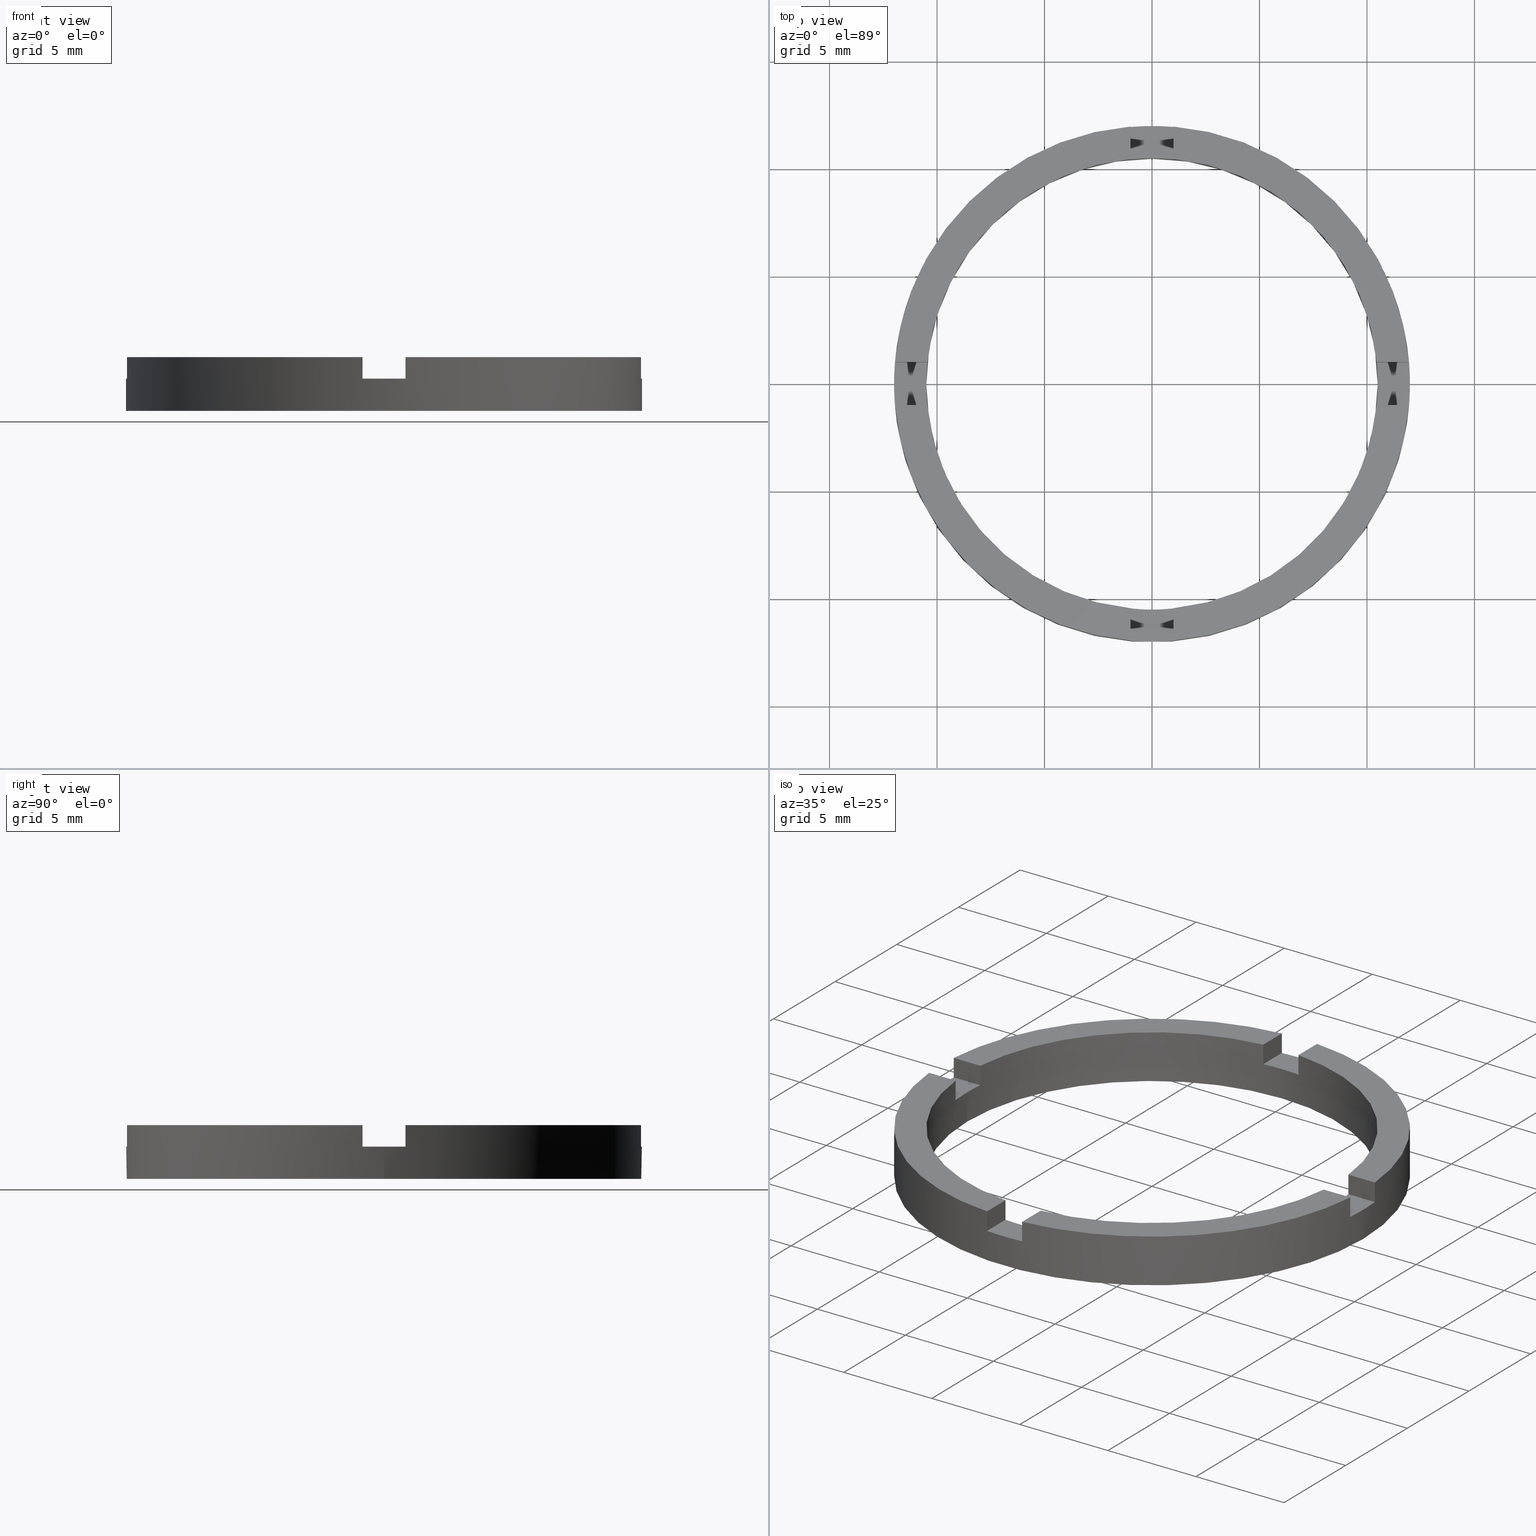
[diagram: canonical four-view strip — front | top / right | iso, engineering-drawing reading convention]
A machine part, canonical four-view strip (front | top / right | iso — engineering-drawing reading convention). The complete STEP part file that produces these views, byte-faithful:
ISO-10303-21;
HEADER;
FILE_DESCRIPTION (( 'STEP AP203' ),
    '1' );
FILE_NAME ('514054.step',
    '2024-12-26T02:33:09',
    ( 'MSI' ),
    ( '' ),
    'SwSTEP 2.0',
    'SolidWorks 2020',
    '' );
FILE_SCHEMA (( 'CONFIG_CONTROL_DESIGN' ));
ENDSEC;

DATA;
#1 = DIRECTION ( 'NONE',  ( 0.000000000000000000, -0.000000000000000000, 1.000000000000000000 ) ) ;
#2 = EDGE_LOOP ( 'NONE', ( #645, #752 ) ) ;
#3 = PLANE ( 'NONE',  #321 ) ;
#4 = EDGE_LOOP ( 'NONE', ( #707, #517, #603, #670, #394, #700, #346, #362, #524, #426, #630, #94 ) ) ;
#5 = VERTEX_POINT ( 'NONE', #34 ) ;
#6 = CARTESIAN_POINT ( 'NONE',  ( 0.000000000000000000, 0.000000000000000000, 2.500000000000000000 ) ) ;
#7 = VERTEX_POINT ( 'NONE', #329 ) ;
#8 = EDGE_LOOP ( 'NONE', ( #273, #177, #510, #445 ) ) ;
#9 = CARTESIAN_POINT ( 'NONE',  ( 0.000000000000000000, 0.000000000000000000, 1.500000000000000000 ) ) ;
#10 = VERTEX_POINT ( 'NONE', #75 ) ;
#11 = ORIENTED_EDGE ( 'NONE', *, *, #65, .F. ) ;
#12 = ORIENTED_EDGE ( 'NONE', *, *, #336, .F. ) ;
#13 = APPROVAL ( #293, 'δָ��' ) ;
#14 = AXIS2_PLACEMENT_3D ( 'NONE', #145, #228, #484 ) ;
#15 = CIRCLE ( 'NONE', #560, 12.00000000000000178 ) ;
#16 = CC_DESIGN_SECURITY_CLASSIFICATION ( #244, ( #204 ) ) ;
#17 = CIRCLE ( 'NONE', #315, 10.49999999999999822 ) ;
#18 = CYLINDRICAL_SURFACE ( 'NONE', #749, 12.00000000000000178 ) ;
#19 = ADVANCED_FACE ( 'NONE', ( #447 ), #761, .F. ) ;
#20 = VECTOR ( 'NONE', #90, 1000.000000000000000 ) ;
#21 = DIRECTION ( 'NONE',  ( 1.000000000000000000, 0.000000000000000000, 0.000000000000000000 ) ) ;
#22 = DIRECTION ( 'NONE',  ( -1.000000000000000000, 0.000000000000000000, 0.000000000000000000 ) ) ;
#23 = APPROVAL_PERSON_ORGANIZATION ( #291, #306, #236 ) ;
#24 = ADVANCED_FACE ( 'NONE', ( #681 ), #506, .T. ) ;
#25 = DIRECTION ( 'NONE',  ( 0.000000000000000000, 0.000000000000000000, 1.000000000000000000 ) ) ;
#26 = AXIS2_PLACEMENT_3D ( 'NONE', #754, #759, #381 ) ;
#27 = DIRECTION ( 'NONE',  ( 0.000000000000000000, 0.000000000000000000, 1.000000000000000000 ) ) ;
#28 = EDGE_CURVE ( 'NONE', #535, #104, #402, .T. ) ;
#29 = CARTESIAN_POINT ( 'NONE',  ( 0.9999999999999754641, 11.95826074310140363, 2.500000000000000000 ) ) ;
#30 = EDGE_CURVE ( 'NONE', #216, #609, #451, .T. ) ;
#31 = FACE_OUTER_BOUND ( 'NONE', #100, .T. ) ;
#32 = DIRECTION ( 'NONE',  ( -1.000000000000000000, 0.000000000000000000, 0.000000000000000000 ) ) ;
#33 = PLANE ( 'NONE',  #579 ) ;
#34 = CARTESIAN_POINT ( 'NONE',  ( 11.95826074310138765, -1.000000000000159872, 2.500000000000000000 ) ) ;
#35 = VECTOR ( 'NONE', #581, 1000.000000000000000 ) ;
#36 = PLANE ( 'NONE',  #704 ) ;
#37 = LINE ( 'NONE', #222, #566 ) ;
#38 = CARTESIAN_POINT ( 'NONE',  ( -11.95826074310140186, 0.9999999999999779066, 2.500000000000000000 ) ) ;
#39 = CARTESIAN_POINT ( 'NONE',  ( 0.000000000000000000, 0.000000000000000000, 0.000000000000000000 ) ) ;
#40 = FACE_OUTER_BOUND ( 'NONE', #226, .T. ) ;
#41 = CC_DESIGN_PERSON_AND_ORGANIZATION_ASSIGNMENT ( #400, #575, ( #168 ) ) ;
#42 = AXIS2_PLACEMENT_3D ( 'NONE', #331, #478, #403 ) ;
#43 = DIRECTION ( 'NONE',  ( 1.301042606982605567E-16, -1.000000000000000000, 0.000000000000000000 ) ) ;
#44 = DIRECTION ( 'NONE',  ( 0.000000000000000000, 0.000000000000000000, 1.000000000000000000 ) ) ;
#45 = DIRECTION ( 'NONE',  ( 1.000000000000000000, 0.000000000000000000, 0.000000000000000000 ) ) ;
#46 = ADVANCED_FACE ( 'NONE', ( #696 ), #262, .T. ) ;
#47 = CARTESIAN_POINT ( 'NONE',  ( 1.999999999999998224, 0.9999999999998397948, 1.500000000000000000 ) ) ;
#48 = DIRECTION ( 'NONE',  ( -0.000000000000000000, -0.000000000000000000, -1.000000000000000000 ) ) ;
#49 = EDGE_CURVE ( 'NONE', #216, #81, #663, .T. ) ;
#50 = CARTESIAN_POINT ( 'NONE',  ( 0.000000000000000000, 0.000000000000000000, 1.500000000000000000 ) ) ;
#51 = AXIS2_PLACEMENT_3D ( 'NONE', #587, #545, #296 ) ;
#52 = DIRECTION ( 'NONE',  ( 1.000000000000000000, 0.000000000000000000, 0.000000000000000000 ) ) ;
#53 = DIRECTION ( 'NONE',  ( 0.000000000000000000, 0.000000000000000000, 1.000000000000000000 ) ) ;
#54 = EDGE_CURVE ( 'NONE', #479, #175, #136, .T. ) ;
#55 = DIRECTION ( 'NONE',  ( 0.000000000000000000, 0.000000000000000000, 1.000000000000000000 ) ) ;
#56 = UNCERTAINTY_MEASURE_WITH_UNIT (LENGTH_MEASURE( 1.000000000000000082E-05 ), #758, 'distance_accuracy_value', 'NONE');
#57 = MANIFOLD_SOLID_BREP ( '�г�-����1', #606 ) ;
#58 = CARTESIAN_POINT ( 'NONE',  ( 0.9999999999999754641, 2.000000000000001776, 1.500000000000000000 ) ) ;
#59 = DESIGN_CONTEXT ( 'detailed design', #229, 'design' ) ;
#60 = AXIS2_PLACEMENT_3D ( 'NONE', #83, #577, #270 ) ;
#61 = CARTESIAN_POINT ( 'NONE',  ( -1.000000000000024425, 10.45227248018343325, 1.500000000000000000 ) ) ;
#62 = ADVANCED_FACE ( 'NONE', ( #665 ), #154, .F. ) ;
#63 = CARTESIAN_POINT ( 'NONE',  ( 0.000000000000000000, 0.000000000000000000, 2.500000000000000000 ) ) ;
#64 = PLANE ( 'NONE',  #256 ) ;
#65 = EDGE_CURVE ( 'NONE', #454, #375, #180, .T. ) ;
#66 = DIRECTION ( 'NONE',  ( -0.000000000000000000, -0.000000000000000000, -1.000000000000000000 ) ) ;
#67 = APPROVAL ( #631, 'δָ��' ) ;
#68 = CARTESIAN_POINT ( 'NONE',  ( 0.000000000000000000, 0.000000000000000000, 0.000000000000000000 ) ) ;
#69 = PERSON_AND_ORGANIZATION_ROLE ( 'design_supplier' ) ;
#70 = DIRECTION ( 'NONE',  ( -0.000000000000000000, -0.000000000000000000, -1.000000000000000000 ) ) ;
#71 = DIRECTION ( 'NONE',  ( -1.000000000000000000, -1.734723475976807341E-16, 0.000000000000000000 ) ) ;
#72 = VERTEX_POINT ( 'NONE', #462 ) ;
#73 = AXIS2_PLACEMENT_3D ( 'NONE', #68, #649, #732 ) ;
#74 = AXIS2_PLACEMENT_3D ( 'NONE', #495, #1, #499 ) ;
#75 = CARTESIAN_POINT ( 'NONE',  ( 0.9999999999998361311, -10.45227248018345101, 1.500000000000000000 ) ) ;
#76 = ORIENTED_EDGE ( 'NONE', *, *, #319, .T. ) ;
#77 = APPLICATION_CONTEXT ( 'configuration controlled 3d designs of mechanical parts and assemblies' ) ;
#78 = EDGE_LOOP ( 'NONE', ( #88, #522, #616, #632, #102, #363, #712, #457, #188, #187, #348, #250 ) ) ;
#79 = CARTESIAN_POINT ( 'NONE',  ( -1.000000000000163869, -10.45227248018341903, 1.500000000000000000 ) ) ;
#80 = EDGE_CURVE ( 'NONE', #114, #352, #141, .T. ) ;
#81 = VERTEX_POINT ( 'NONE', #611 ) ;
#82 = ORIENTED_EDGE ( 'NONE', *, *, #380, .F. ) ;
#83 = CARTESIAN_POINT ( 'NONE',  ( 0.000000000000000000, 0.000000000000000000, 1.500000000000000000 ) ) ;
#84 = DIRECTION ( 'NONE',  ( 0.000000000000000000, 0.000000000000000000, 1.000000000000000000 ) ) ;
#85 = EDGE_LOOP ( 'NONE', ( #107, #542, #111, #497 ) ) ;
#86 = AXIS2_PLACEMENT_3D ( 'NONE', #6, #546, #194 ) ;
#87 = DIRECTION ( 'NONE',  ( -0.000000000000000000, -1.000000000000000000, -0.000000000000000000 ) ) ;
#88 = ORIENTED_EDGE ( 'NONE', *, *, #585, .T. ) ;
#89 = ORIENTED_EDGE ( 'NONE', *, *, #486, .F. ) ;
#90 = DIRECTION ( 'NONE',  ( -0.000000000000000000, -0.000000000000000000, -1.000000000000000000 ) ) ;
#91 = CARTESIAN_POINT ( 'NONE',  ( 0.000000000000000000, 0.000000000000000000, 2.500000000000000000 ) ) ;
#92 = ORIENTED_EDGE ( 'NONE', *, *, #196, .F. ) ;
#93 = EDGE_CURVE ( 'NONE', #604, #264, #441, .T. ) ;
#94 = ORIENTED_EDGE ( 'NONE', *, *, #443, .F. ) ;
#95 = CARTESIAN_POINT ( 'NONE',  ( -12.00000000000000178, 0.000000000000000000, 0.000000000000000000 ) ) ;
#96 = ORIENTED_EDGE ( 'NONE', *, *, #595, .F. ) ;
#97 = VERTEX_POINT ( 'NONE', #61 ) ;
#98 = DIRECTION ( 'NONE',  ( 1.000000000000000000, 0.000000000000000000, 0.000000000000000000 ) ) ;
#99 = CARTESIAN_POINT ( 'NONE',  ( -11.95826074310139830, -1.000000000000022204, 2.500000000000000000 ) ) ;
#100 = EDGE_LOOP ( 'NONE', ( #773, #508, #345, #105, #613, #255, #623, #459, #248, #189, #411, #259 ) ) ;
#101 = DIRECTION ( 'NONE',  ( 0.000000000000000000, 0.000000000000000000, 1.000000000000000000 ) ) ;
#102 = ORIENTED_EDGE ( 'NONE', *, *, #311, .T. ) ;
#103 = DIRECTION ( 'NONE',  ( 0.000000000000000000, 0.000000000000000000, 1.000000000000000000 ) ) ;
#104 = VERTEX_POINT ( 'NONE', #519 ) ;
#105 = ORIENTED_EDGE ( 'NONE', *, *, #373, .F. ) ;
#106 = CARTESIAN_POINT ( 'NONE',  ( 0.9999999999998363531, -11.95826074310141429, 1.500000000000000000 ) ) ;
#107 = ORIENTED_EDGE ( 'NONE', *, *, #330, .F. ) ;
#108 = CARTESIAN_POINT ( 'NONE',  ( 11.95826074310138765, -1.000000000000159872, 2.500000000000000000 ) ) ;
#109 = CC_DESIGN_APPROVAL ( #306, ( #168 ) ) ;
#110 = ORIENTED_EDGE ( 'NONE', *, *, #727, .T. ) ;
#111 = ORIENTED_EDGE ( 'NONE', *, *, #453, .F. ) ;
#112 = ORIENTED_EDGE ( 'NONE', *, *, #207, .T. ) ;
#113 = DIRECTION ( 'NONE',  ( 1.000000000000000000, 1.734723475976807341E-16, 0.000000000000000000 ) ) ;
#114 = VERTEX_POINT ( 'NONE', #570 ) ;
#115 = ORIENTED_EDGE ( 'NONE', *, *, #746, .F. ) ;
#116 = EDGE_LOOP ( 'NONE', ( #12, #688, #405, #96 ) ) ;
#117 = CARTESIAN_POINT ( 'NONE',  ( -10.49999999999999822, 0.000000000000000000, 0.000000000000000000 ) ) ;
#118 = EDGE_CURVE ( 'NONE', #246, #544, #448, .T. ) ;
#119 = AXIS2_PLACEMENT_3D ( 'NONE', #239, #584, #113 ) ;
#120 = DIRECTION ( 'NONE',  ( 1.000000000000000000, 0.000000000000000000, 0.000000000000000000 ) ) ;
#121 = ADVANCED_BREP_SHAPE_REPRESENTATION ( '514054', ( #57, #782 ), #716 ) ;
#122 = CIRCLE ( 'NONE', #42, 10.49999999999999822 ) ;
#123 = EDGE_CURVE ( 'NONE', #531, #237, #677, .T. ) ;
#124 = LINE ( 'NONE', #178, #446 ) ;
#125 = EDGE_CURVE ( 'NONE', #779, #10, #449, .T. ) ;
#126 = PERSON_AND_ORGANIZATION ( #312, #287 ) ;
#127 = CIRCLE ( 'NONE', #742, 12.00000000000000178 ) ;
#128 = LOCAL_TIME ( 10, 33, 9.000000000000000000, #407 ) ;
#129 = CYLINDRICAL_SURFACE ( 'NONE', #470, 10.49999999999999822 ) ;
#130 = LOCAL_TIME ( 10, 33, 9.000000000000000000, #304 ) ;
#131 = VECTOR ( 'NONE', #723, 1000.000000000000000 ) ;
#132 = CIRCLE ( 'NONE', #73, 10.49999999999999822 ) ;
#133 = CARTESIAN_POINT ( 'NONE',  ( -12.00000000000000178, 0.000000000000000000, 2.500000000000000000 ) ) ;
#134 = DATE_AND_TIME ( #142, #128 ) ;
#135 = LINE ( 'NONE', #339, #153 ) ;
#136 = LINE ( 'NONE', #364, #674 ) ;
#137 = ADVANCED_FACE ( 'NONE', ( #703 ), #477, .F. ) ;
#138 = AXIS2_PLACEMENT_3D ( 'NONE', #548, #738, #52 ) ;
#139 = CALENDAR_DATE ( 2024, 26, 12 ) ;
#140 = CIRCLE ( 'NONE', #86, 12.00000000000000178 ) ;
#141 = CIRCLE ( 'NONE', #654, 12.00000000000000178 ) ;
#142 = CALENDAR_DATE ( 2024, 26, 12 ) ;
#143 = CIRCLE ( 'NONE', #597, 12.00000000000000178 ) ;
#144 = VECTOR ( 'NONE', #332, 1000.000000000000000 ) ;
#145 = CARTESIAN_POINT ( 'NONE',  ( 0.000000000000000000, 0.000000000000000000, 2.500000000000000000 ) ) ;
#146 = PERSON_AND_ORGANIZATION ( #312, #287 ) ;
#147 = LINE ( 'NONE', #420, #399 ) ;
#148 = COORDINATED_UNIVERSAL_TIME_OFFSET ( 8, 0, .AHEAD. ) ;
#149 = FACE_OUTER_BOUND ( 'NONE', #533, .T. ) ;
#150 = VECTOR ( 'NONE', #383, 1000.000000000000000 ) ;
#151 = ADVANCED_FACE ( 'NONE', ( #705 ), #64, .T. ) ;
#152 = APPROVAL_DATE_TIME ( #388, #67 ) ;
#153 = VECTOR ( 'NONE', #500, 1000.000000000000000 ) ;
#154 = CYLINDRICAL_SURFACE ( 'NONE', #450, 10.49999999999999822 ) ;
#155 = DATE_AND_TIME ( #668, #392 ) ;
#156 = LINE ( 'NONE', #602, #423 ) ;
#157 = VECTOR ( 'NONE', #55, 1000.000000000000000 ) ;
#158 = CARTESIAN_POINT ( 'NONE',  ( 1.999999999999998224, -1.000000000000160316, 1.500000000000000000 ) ) ;
#159 = LOCAL_TIME ( 10, 33, 9.000000000000000000, #148 ) ;
#160 = CIRCLE ( 'NONE', #267, 10.49999999999999822 ) ;
#161 = PERSON_AND_ORGANIZATION ( #312, #287 ) ;
#162 = VECTOR ( 'NONE', #317, 1000.000000000000000 ) ;
#163 = CIRCLE ( 'NONE', #205, 10.49999999999999822 ) ;
#164 = ORIENTED_EDGE ( 'NONE', *, *, #125, .T. ) ;
#165 = VECTOR ( 'NONE', #70, 1000.000000000000000 ) ;
#166 = LINE ( 'NONE', #38, #144 ) ;
#167 = CARTESIAN_POINT ( 'NONE',  ( 0.000000000000000000, 0.000000000000000000, 1.500000000000000000 ) ) ;
#168 = PRODUCT_DEFINITION ( 'δ֪', '', #204, #59 ) ;
#169 = CIRCLE ( 'NONE', #279, 10.49999999999999822 ) ;
#170 = VECTOR ( 'NONE', #209, 1000.000000000000000 ) ;
#171 = DIRECTION ( 'NONE',  ( 1.000000000000000000, 0.000000000000000000, -0.000000000000000000 ) ) ;
#172 = APPLICATION_PROTOCOL_DEFINITION ( 'international standard', 'config_control_design', 1994, #77 ) ;
#173 = FACE_OUTER_BOUND ( 'NONE', #212, .T. ) ;
#174 = EDGE_LOOP ( 'NONE', ( #112, #640 ) ) ;
#175 = VERTEX_POINT ( 'NONE', #235 ) ;
#176 = VECTOR ( 'NONE', #755, 1000.000000000000000 ) ;
#177 = ORIENTED_EDGE ( 'NONE', *, *, #179, .T. ) ;
#178 = CARTESIAN_POINT ( 'NONE',  ( 11.95826074310141429, 0.9999999999998402389, 2.500000000000000000 ) ) ;
#179 = EDGE_CURVE ( 'NONE', #753, #610, #147, .T. ) ;
#180 = LINE ( 'NONE', #265, #691 ) ;
#181 = MECHANICAL_CONTEXT ( 'NONE', #77, 'mechanical' ) ;
#182 = VERTEX_POINT ( 'NONE', #29 ) ;
#183 = ORIENTED_EDGE ( 'NONE', *, *, #123, .T. ) ;
#184 = DIRECTION ( 'NONE',  ( -0.000000000000000000, -1.000000000000000000, -0.000000000000000000 ) ) ;
#185 = ORIENTED_EDGE ( 'NONE', *, *, #562, .T. ) ;
#186 = DIRECTION ( 'NONE',  ( -1.000000000000000000, -4.336808689942018352E-17, 0.000000000000000000 ) ) ;
#187 = ORIENTED_EDGE ( 'NONE', *, *, #125, .F. ) ;
#188 = ORIENTED_EDGE ( 'NONE', *, *, #281, .T. ) ;
#189 = ORIENTED_EDGE ( 'NONE', *, *, #309, .F. ) ;
#190 = AXIS2_PLACEMENT_3D ( 'NONE', #47, #245, #186 ) ;
#191 = ORIENTED_EDGE ( 'NONE', *, *, #123, .F. ) ;
#192 = EDGE_CURVE ( 'NONE', #531, #454, #452, .T. ) ;
#193 = DIRECTION ( 'NONE',  ( -0.000000000000000000, -0.000000000000000000, -1.000000000000000000 ) ) ;
#194 = DIRECTION ( 'NONE',  ( 1.000000000000000000, 0.000000000000000000, 0.000000000000000000 ) ) ;
#195 = ORIENTED_EDGE ( 'NONE', *, *, #656, .T. ) ;
#196 = EDGE_CURVE ( 'NONE', #607, #779, #415, .T. ) ;
#197 = CARTESIAN_POINT ( 'NONE',  ( 0.9999999999999754641, 2.000000000000001776, 1.500000000000000000 ) ) ;
#198 = DIRECTION ( 'NONE',  ( 1.000000000000000000, 0.000000000000000000, 0.000000000000000000 ) ) ;
#199 = CARTESIAN_POINT ( 'NONE',  ( -1.000000000000024425, 2.000000000000001776, 1.500000000000000000 ) ) ;
#200 = CARTESIAN_POINT ( 'NONE',  ( 0.000000000000000000, 0.000000000000000000, 2.500000000000000000 ) ) ;
#201 = DIRECTION ( 'NONE',  ( 0.000000000000000000, 0.000000000000000000, 1.000000000000000000 ) ) ;
#202 = ADVANCED_FACE ( 'NONE', ( #390, #655 ), #379, .F. ) ;
#203 = CARTESIAN_POINT ( 'NONE',  ( -1.000000000000024425, 11.95826074310139830, 2.500000000000000000 ) ) ;
#204 = PRODUCT_DEFINITION_FORMATION_WITH_SPECIFIED_SOURCE ( '�κ�', '', #600, .NOT_KNOWN. ) ;
#205 = AXIS2_PLACEMENT_3D ( 'NONE', #482, #305, #436 ) ;
#206 = CIRCLE ( 'NONE', #14, 10.49999999999999822 ) ;
#207 = EDGE_CURVE ( 'NONE', #419, #104, #132, .T. ) ;
#208 = CC_DESIGN_DATE_AND_TIME_ASSIGNMENT ( #682, #464, ( #244 ) ) ;
#209 = DIRECTION ( 'NONE',  ( -0.000000000000000000, -0.000000000000000000, -1.000000000000000000 ) ) ;
#210 = CIRCLE ( 'NONE', #395, 12.00000000000000178 ) ;
#211 = DIRECTION ( 'NONE',  ( -0.000000000000000000, 0.000000000000000000, 1.000000000000000000 ) ) ;
#212 = EDGE_LOOP ( 'NONE', ( #261, #772, #344, #115, #242, #615 ) ) ;
#213 = CARTESIAN_POINT ( 'NONE',  ( -1.000000000000164979, -2.000000000000182077, 1.500000000000000000 ) ) ;
#214 = EDGE_CURVE ( 'NONE', #237, #375, #166, .T. ) ;
#215 = DIRECTION ( 'NONE',  ( 0.000000000000000000, 0.000000000000000000, 1.000000000000000000 ) ) ;
#216 = VERTEX_POINT ( 'NONE', #217 ) ;
#217 = CARTESIAN_POINT ( 'NONE',  ( 0.9999999999999754641, 10.45227248018343680, 1.500000000000000000 ) ) ;
#218 =( NAMED_UNIT ( * ) SI_UNIT ( $, .STERADIAN. ) SOLID_ANGLE_UNIT ( ) );
#219 = EDGE_CURVE ( 'NONE', #264, #610, #435, .T. ) ;
#220 = EDGE_CURVE ( 'NONE', #72, #419, #393, .T. ) ;
#221 = ORIENTED_EDGE ( 'NONE', *, *, #561, .T. ) ;
#222 = CARTESIAN_POINT ( 'NONE',  ( -2.000000000000185629, -1.000000000000020428, 2.500000000000000000 ) ) ;
#223 = ORIENTED_EDGE ( 'NONE', *, *, #557, .T. ) ;
#224 = CARTESIAN_POINT ( 'NONE',  ( -12.00000000000000178, 0.000000000000000000, 1.500000000000000000 ) ) ;
#225 = DIRECTION ( 'NONE',  ( 0.000000000000000000, 0.000000000000000000, 1.000000000000000000 ) ) ;
#226 = EDGE_LOOP ( 'NONE', ( #639, #223, #11, #230 ) ) ;
#227 = CARTESIAN_POINT ( 'NONE',  ( -1.000000000000163869, -10.45227248018341903, 2.500000000000000000 ) ) ;
#228 = DIRECTION ( 'NONE',  ( 0.000000000000000000, 0.000000000000000000, 1.000000000000000000 ) ) ;
#229 = APPLICATION_CONTEXT ( 'configuration controlled 3d designs of mechanical parts and assemblies' ) ;
#230 = ORIENTED_EDGE ( 'NONE', *, *, #684, .F. ) ;
#231 = DIRECTION ( 'NONE',  ( 0.000000000000000000, 0.000000000000000000, 1.000000000000000000 ) ) ;
#232 = CARTESIAN_POINT ( 'NONE',  ( 0.000000000000000000, 0.000000000000000000, 1.500000000000000000 ) ) ;
#233 = AXIS2_PLACEMENT_3D ( 'NONE', #502, #515, #572 ) ;
#234 = VERTEX_POINT ( 'NONE', #629 ) ;
#235 = CARTESIAN_POINT ( 'NONE',  ( -1.000000000000163647, -11.95826074310138765, 2.500000000000000000 ) ) ;
#236 = APPROVAL_ROLE ( '' ) ;
#237 = VERTEX_POINT ( 'NONE', #717 ) ;
#238 = DIRECTION ( 'NONE',  ( -1.000000000000000000, 0.000000000000000000, 0.000000000000000000 ) ) ;
#239 = CARTESIAN_POINT ( 'NONE',  ( -2.000000000000185629, -1.000000000000020428, 1.500000000000000000 ) ) ;
#240 = ORIENTED_EDGE ( 'NONE', *, *, #192, .T. ) ;
#241 = ORIENTED_EDGE ( 'NONE', *, *, #196, .T. ) ;
#242 = ORIENTED_EDGE ( 'NONE', *, *, #585, .F. ) ;
#243 = VERTEX_POINT ( 'NONE', #391 ) ;
#244 = SECURITY_CLASSIFICATION ( '', '', #771 ) ;
#245 = DIRECTION ( 'NONE',  ( -4.336808689942018352E-17, 1.000000000000000000, 0.000000000000000000 ) ) ;
#246 = VERTEX_POINT ( 'NONE', #468 ) ;
#247 = PLANE ( 'NONE',  #249 ) ;
#248 = ORIENTED_EDGE ( 'NONE', *, *, #466, .T. ) ;
#249 = AXIS2_PLACEMENT_3D ( 'NONE', #547, #650, #589 ) ;
#250 = ORIENTED_EDGE ( 'NONE', *, *, #439, .F. ) ;
#251 = CARTESIAN_POINT ( 'NONE',  ( -1.000000000000164979, -2.000000000000182077, 1.500000000000000000 ) ) ;
#252 = EDGE_LOOP ( 'NONE', ( #642, #368, #713, #511 ) ) ;
#253 = DIRECTION ( 'NONE',  ( 1.000000000000000000, 0.000000000000000000, -0.000000000000000000 ) ) ;
#254 = CARTESIAN_POINT ( 'NONE',  ( 0.000000000000000000, 0.000000000000000000, 0.000000000000000000 ) ) ;
#255 = ORIENTED_EDGE ( 'NONE', *, *, #80, .F. ) ;
#256 = AXIS2_PLACEMENT_3D ( 'NONE', #778, #323, #171 ) ;
#257 = CARTESIAN_POINT ( 'NONE',  ( 10.45227248018341903, -1.000000000000159872, 2.500000000000000000 ) ) ;
#258 = EDGE_CURVE ( 'NONE', #7, #5, #673, .T. ) ;
#259 = ORIENTED_EDGE ( 'NONE', *, *, #750, .T. ) ;
#260 = ORIENTED_EDGE ( 'NONE', *, *, #118, .T. ) ;
#261 = ORIENTED_EDGE ( 'NONE', *, *, #536, .T. ) ;
#262 = PLANE ( 'NONE',  #622 ) ;
#263 = EDGE_LOOP ( 'NONE', ( #266, #489, #92, #529 ) ) ;
#264 = VERTEX_POINT ( 'NONE', #488 ) ;
#265 = CARTESIAN_POINT ( 'NONE',  ( -2.000000000000185629, 0.9999999999999796829, 2.500000000000000000 ) ) ;
#266 = ORIENTED_EDGE ( 'NONE', *, *, #258, .F. ) ;
#267 = AXIS2_PLACEMENT_3D ( 'NONE', #591, #715, #736 ) ;
#268 = ADVANCED_FACE ( 'NONE', ( #692 ), #129, .F. ) ;
#269 = VERTEX_POINT ( 'NONE', #523 ) ;
#270 = DIRECTION ( 'NONE',  ( 1.000000000000000000, 0.000000000000000000, 0.000000000000000000 ) ) ;
#271 = VERTEX_POINT ( 'NONE', #224 ) ;
#272 = EDGE_LOOP ( 'NONE', ( #191, #240, #774, #361 ) ) ;
#273 = ORIENTED_EDGE ( 'NONE', *, *, #453, .T. ) ;
#274 = ADVANCED_FACE ( 'NONE', ( #398 ), #432, .F. ) ;
#275 = DIRECTION ( 'NONE',  ( -1.000000000000000000, -4.336808689942018352E-17, -0.000000000000000000 ) ) ;
#276 = APPROVAL_ROLE ( '' ) ;
#277 = DIRECTION ( 'NONE',  ( -0.000000000000000000, 0.000000000000000000, 1.000000000000000000 ) ) ;
#278 = DIRECTION ( 'NONE',  ( 1.000000000000000000, 0.000000000000000000, 0.000000000000000000 ) ) ;
#279 = AXIS2_PLACEMENT_3D ( 'NONE', #232, #504, #289 ) ;
#280 = DATE_TIME_ROLE ( 'creation_date' ) ;
#281 = EDGE_CURVE ( 'NONE', #455, #10, #389, .T. ) ;
#282 = CIRCLE ( 'NONE', #51, 10.49999999999999822 ) ;
#283 = CARTESIAN_POINT ( 'NONE',  ( 0.9999999999999754641, 10.45227248018343680, 2.500000000000000000 ) ) ;
#284 = EDGE_CURVE ( 'NONE', #234, #5, #669, .T. ) ;
#285 = CIRCLE ( 'NONE', #429, 10.49999999999999822 ) ;
#286 = APPROVAL_STATUS ( 'not_yet_approved' ) ;
#287 = ORGANIZATION ( 'δָ��', 'δָ��', '' ) ;
#288 = DIRECTION ( 'NONE',  ( 1.000000000000000000, 0.000000000000000000, 0.000000000000000000 ) ) ;
#289 = DIRECTION ( 'NONE',  ( 1.000000000000000000, 0.000000000000000000, 0.000000000000000000 ) ) ;
#290 = AXIS2_PLACEMENT_3D ( 'NONE', #91, #297, #335 ) ;
#291 = PERSON_AND_ORGANIZATION ( #312, #287 ) ;
#292 = CARTESIAN_POINT ( 'NONE',  ( 0.000000000000000000, 0.000000000000000000, 0.000000000000000000 ) ) ;
#293 = APPROVAL_STATUS ( 'not_yet_approved' ) ;
#294 = EDGE_CURVE ( 'NONE', #710, #461, #143, .T. ) ;
#295 = VECTOR ( 'NONE', #338, 1000.000000000000000 ) ;
#296 = DIRECTION ( 'NONE',  ( 1.000000000000000000, 0.000000000000000000, 0.000000000000000000 ) ) ;
#297 = DIRECTION ( 'NONE',  ( 0.000000000000000000, 0.000000000000000000, 1.000000000000000000 ) ) ;
#298 = ADVANCED_FACE ( 'NONE', ( #149 ), #731, .F. ) ;
#299 = LINE ( 'NONE', #333, #35 ) ;
#300 = LINE ( 'NONE', #730, #295 ) ;
#301 = CARTESIAN_POINT ( 'NONE',  ( 0.000000000000000000, 0.000000000000000000, 2.500000000000000000 ) ) ;
#302 = CARTESIAN_POINT ( 'NONE',  ( -11.95826074310140186, 0.9999999999999779066, 2.500000000000000000 ) ) ;
#303 = DIRECTION ( 'NONE',  ( 1.000000000000000000, 0.000000000000000000, 0.000000000000000000 ) ) ;
#304 = COORDINATED_UNIVERSAL_TIME_OFFSET ( 8, 0, .AHEAD. ) ;
#305 = DIRECTION ( 'NONE',  ( 0.000000000000000000, 0.000000000000000000, 1.000000000000000000 ) ) ;
#306 = APPROVAL ( #286, 'δָ��' ) ;
#307 = DIRECTION ( 'NONE',  ( 0.000000000000000000, 0.000000000000000000, 1.000000000000000000 ) ) ;
#308 = CARTESIAN_POINT ( 'NONE',  ( -10.45227248018343680, 0.9999999999999783507, 1.500000000000000000 ) ) ;
#309 = EDGE_CURVE ( 'NONE', #271, #269, #676, .T. ) ;
#310 = LINE ( 'NONE', #573, #568 ) ;
#311 = EDGE_CURVE ( 'NONE', #72, #544, #169, .T. ) ;
#312 = PERSON ( 'δָ��', 'δָ��', 'δָ��', ('δָ��'), ('δָ��'), ('δָ��') ) ;
#313 = DIRECTION ( 'NONE',  ( 0.000000000000000000, 0.000000000000000000, 1.000000000000000000 ) ) ;
#314 = AXIS2_PLACEMENT_3D ( 'NONE', #702, #25, #21 ) ;
#315 = AXIS2_PLACEMENT_3D ( 'NONE', #167, #493, #98 ) ;
#316 = EDGE_CURVE ( 'NONE', #243, #97, #404, .T. ) ;
#317 = DIRECTION ( 'NONE',  ( 0.000000000000000000, 1.000000000000000000, 0.000000000000000000 ) ) ;
#318 = DIRECTION ( 'NONE',  ( -1.000000000000000000, -1.734723475976807341E-16, 0.000000000000000000 ) ) ;
#319 = EDGE_CURVE ( 'NONE', #357, #175, #410, .T. ) ;
#320 = CC_DESIGN_DATE_AND_TIME_ASSIGNMENT ( #155, #280, ( #168 ) ) ;
#321 = AXIS2_PLACEMENT_3D ( 'NONE', #50, #103, #764 ) ;
#322 = DIRECTION ( 'NONE',  ( -1.000000000000000000, -1.301042606982605567E-16, 0.000000000000000000 ) ) ;
#323 = DIRECTION ( 'NONE',  ( 0.000000000000000000, 0.000000000000000000, 1.000000000000000000 ) ) ;
#324 = PERSON_AND_ORGANIZATION_ROLE ( 'creator' ) ;
#325 = DIRECTION ( 'NONE',  ( 1.301042606982605567E-16, -1.000000000000000000, 0.000000000000000000 ) ) ;
#326 = DIRECTION ( 'NONE',  ( 1.000000000000000000, 1.734723475976807341E-16, -0.000000000000000000 ) ) ;
#327 = CARTESIAN_POINT ( 'NONE',  ( -10.45227248018343325, -1.000000000000021760, 2.500000000000000000 ) ) ;
#328 = DIRECTION ( 'NONE',  ( 0.000000000000000000, -0.000000000000000000, 1.000000000000000000 ) ) ;
#329 = CARTESIAN_POINT ( 'NONE',  ( 10.45227248018341903, -1.000000000000159872, 2.500000000000000000 ) ) ;
#330 = EDGE_CURVE ( 'NONE', #609, #182, #414, .T. ) ;
#331 = CARTESIAN_POINT ( 'NONE',  ( 0.000000000000000000, 0.000000000000000000, 1.500000000000000000 ) ) ;
#332 = DIRECTION ( 'NONE',  ( 0.000000000000000000, 0.000000000000000000, 1.000000000000000000 ) ) ;
#333 = CARTESIAN_POINT ( 'NONE',  ( 0.9999999999999754641, 11.95826074310140363, 2.500000000000000000 ) ) ;
#334 = CARTESIAN_POINT ( 'NONE',  ( 12.00000000000000178, 1.469576158976824144E-15, 0.000000000000000000 ) ) ;
#335 = DIRECTION ( 'NONE',  ( 1.000000000000000000, 0.000000000000000000, 0.000000000000000000 ) ) ;
#336 = EDGE_CURVE ( 'NONE', #455, #114, #662, .T. ) ;
#337 = ORIENTED_EDGE ( 'NONE', *, *, #592, .F. ) ;
#338 = DIRECTION ( 'NONE',  ( -1.301042606982605567E-16, 1.000000000000000000, -0.000000000000000000 ) ) ;
#339 = CARTESIAN_POINT ( 'NONE',  ( 0.9999999999998363531, -11.95826074310141429, 2.500000000000000000 ) ) ;
#340 = ORIENTED_EDGE ( 'NONE', *, *, #49, .T. ) ;
#341 = DIRECTION ( 'NONE',  ( 1.000000000000000000, -0.000000000000000000, 0.000000000000000000 ) ) ;
#342 = CARTESIAN_POINT ( 'NONE',  ( 11.95826074310141429, 0.9999999999998402389, 2.500000000000000000 ) ) ;
#343 = ORIENTED_EDGE ( 'NONE', *, *, #641, .F. ) ;
#344 = ORIENTED_EDGE ( 'NONE', *, *, #219, .T. ) ;
#345 = ORIENTED_EDGE ( 'NONE', *, *, #284, .T. ) ;
#346 = ORIENTED_EDGE ( 'NONE', *, *, #316, .F. ) ;
#347 = EDGE_LOOP ( 'NONE', ( #358, #628, #343, #76 ) ) ;
#348 = ORIENTED_EDGE ( 'NONE', *, *, #507, .T. ) ;
#349 = CARTESIAN_POINT ( 'NONE',  ( 10.49999999999999822, 1.285879139104720633E-15, 1.500000000000000000 ) ) ;
#350 = ORIENTED_EDGE ( 'NONE', *, *, #641, .T. ) ;
#351 = AXIS2_PLACEMENT_3D ( 'NONE', #356, #556, #120 ) ;
#352 = VERTEX_POINT ( 'NONE', #106 ) ;
#353 = EDGE_LOOP ( 'NONE', ( #241, #164, #505, #82 ) ) ;
#354 = VERTEX_POINT ( 'NONE', #417 ) ;
#355 = ORIENTED_EDGE ( 'NONE', *, *, #486, .T. ) ;
#356 = CARTESIAN_POINT ( 'NONE',  ( 0.000000000000000000, 0.000000000000000000, 0.000000000000000000 ) ) ;
#357 = VERTEX_POINT ( 'NONE', #99 ) ;
#358 = ORIENTED_EDGE ( 'NONE', *, *, #54, .F. ) ;
#359 = ORIENTED_EDGE ( 'NONE', *, *, #541, .T. ) ;
#360 = PRODUCT_RELATED_PRODUCT_CATEGORY ( 'detail', '', ( #600 ) ) ;
#361 = ORIENTED_EDGE ( 'NONE', *, *, #214, .F. ) ;
#362 = ORIENTED_EDGE ( 'NONE', *, *, #684, .T. ) ;
#363 = ORIENTED_EDGE ( 'NONE', *, *, #118, .F. ) ;
#364 = CARTESIAN_POINT ( 'NONE',  ( -1.000000000000164979, -2.000000000000182077, 2.500000000000000000 ) ) ;
#365 = AXIS2_PLACEMENT_3D ( 'NONE', #197, #341, #593 ) ;
#366 = AXIS2_PLACEMENT_3D ( 'NONE', #382, #643, #472 ) ;
#367 = ORIENTED_EDGE ( 'NONE', *, *, #557, .F. ) ;
#368 = ORIENTED_EDGE ( 'NONE', *, *, #439, .T. ) ;
#369 = PRODUCT_DEFINITION_SHAPE ( 'NONE', 'NONE',  #168 ) ;
#370 = VERTEX_POINT ( 'NONE', #203 ) ;
#371 = ORIENTED_EDGE ( 'NONE', *, *, #599, .F. ) ;
#372 = DIRECTION ( 'NONE',  ( -1.000000000000000000, -1.734723475976807341E-16, 0.000000000000000000 ) ) ;
#373 = EDGE_CURVE ( 'NONE', #607, #5, #140, .T. ) ;
#374 = DIRECTION ( 'NONE',  ( 0.000000000000000000, 0.000000000000000000, 1.000000000000000000 ) ) ;
#375 = VERTEX_POINT ( 'NONE', #302 ) ;
#376 = ORIENTED_EDGE ( 'NONE', *, *, #501, .T. ) ;
#377 = CARTESIAN_POINT ( 'NONE',  ( 0.000000000000000000, 0.000000000000000000, 2.500000000000000000 ) ) ;
#378 = CARTESIAN_POINT ( 'NONE',  ( 0.000000000000000000, 0.000000000000000000, 2.500000000000000000 ) ) ;
#379 = PLANE ( 'NONE',  #559 ) ;
#380 = EDGE_CURVE ( 'NONE', #607, #352, #135, .T. ) ;
#381 = DIRECTION ( 'NONE',  ( -1.301042606982605567E-16, 1.000000000000000000, 0.000000000000000000 ) ) ;
#382 = CARTESIAN_POINT ( 'NONE',  ( 0.000000000000000000, 0.000000000000000000, 2.500000000000000000 ) ) ;
#383 = DIRECTION ( 'NONE',  ( 0.000000000000000000, 0.000000000000000000, 1.000000000000000000 ) ) ;
#384 = FACE_OUTER_BOUND ( 'NONE', #487, .T. ) ;
#385 = CARTESIAN_POINT ( 'NONE',  ( -1.000000000000163869, -10.45227248018341903, 2.500000000000000000 ) ) ;
#386 = LINE ( 'NONE', #133, #653 ) ;
#387 = CIRCLE ( 'NONE', #351, 10.49999999999999822 ) ;
#388 = DATE_AND_TIME ( #412, #159 ) ;
#389 = CIRCLE ( 'NONE', #138, 10.49999999999999822 ) ;
#390 = FACE_OUTER_BOUND ( 'NONE', #2, .T. ) ;
#391 = CARTESIAN_POINT ( 'NONE',  ( -1.000000000000024425, 10.45227248018343325, 2.500000000000000000 ) ) ;
#392 = LOCAL_TIME ( 10, 33, 9.000000000000000000, #664 ) ;
#393 = LINE ( 'NONE', #406, #131 ) ;
#394 = ORIENTED_EDGE ( 'NONE', *, *, #30, .F. ) ;
#395 = AXIS2_PLACEMENT_3D ( 'NONE', #721, #567, #278 ) ;
#396 = CARTESIAN_POINT ( 'NONE',  ( -1.000000000000024425, 2.000000000000001776, 2.500000000000000000 ) ) ;
#397 = APPROVAL_DATE_TIME ( #134, #13 ) ;
#398 = FACE_OUTER_BOUND ( 'NONE', #540, .T. ) ;
#399 = VECTOR ( 'NONE', #586, 1000.000000000000000 ) ;
#400 = PERSON_AND_ORGANIZATION ( #312, #287 ) ;
#401 = LINE ( 'NONE', #257, #680 ) ;
#402 = LINE ( 'NONE', #744, #170 ) ;
#403 = DIRECTION ( 'NONE',  ( 1.000000000000000000, 0.000000000000000000, 0.000000000000000000 ) ) ;
#404 = LINE ( 'NONE', #776, #434 ) ;
#405 = ORIENTED_EDGE ( 'NONE', *, *, #54, .T. ) ;
#406 = CARTESIAN_POINT ( 'NONE',  ( -10.49999999999999822, 0.000000000000000000, 2.500000000000000000 ) ) ;
#407 = COORDINATED_UNIVERSAL_TIME_OFFSET ( 8, 0, .AHEAD. ) ;
#408 = VECTOR ( 'NONE', #275, 1000.000000000000000 ) ;
#409 = CALENDAR_DATE ( 2024, 26, 12 ) ;
#410 = CIRCLE ( 'NONE', #290, 12.00000000000000178 ) ;
#411 = ORIENTED_EDGE ( 'NONE', *, *, #571, .T. ) ;
#412 = CALENDAR_DATE ( 2024, 26, 12 ) ;
#413 = ADVANCED_FACE ( 'NONE', ( #418 ), #657, .T. ) ;
#414 = LINE ( 'NONE', #442, #651 ) ;
#415 = LINE ( 'NONE', #638, #693 ) ;
#416 = CARTESIAN_POINT ( 'NONE',  ( -1.000000000000024425, 11.95826074310139830, 1.500000000000000000 ) ) ;
#417 = CARTESIAN_POINT ( 'NONE',  ( 10.45227248018341903, -1.000000000000159872, 1.500000000000000000 ) ) ;
#418 = FACE_OUTER_BOUND ( 'NONE', #263, .T. ) ;
#419 = VERTEX_POINT ( 'NONE', #117 ) ;
#420 = CARTESIAN_POINT ( 'NONE',  ( 10.45227248018345101, 0.9999999999998402389, 2.500000000000000000 ) ) ;
#421 = CC_DESIGN_PERSON_AND_ORGANIZATION_ASSIGNMENT ( #161, #475, ( #244 ) ) ;
#422 = APPROVAL_DATE_TIME ( #666, #306 ) ;
#423 = VECTOR ( 'NONE', #424, 1000.000000000000000 ) ;
#424 = DIRECTION ( 'NONE',  ( -1.000000000000000000, -4.336808689942018352E-17, -0.000000000000000000 ) ) ;
#425 = FACE_OUTER_BOUND ( 'NONE', #635, .T. ) ;
#426 = ORIENTED_EDGE ( 'NONE', *, *, #563, .T. ) ;
#427 = VECTOR ( 'NONE', #87, 1000.000000000000000 ) ;
#428 = AXIS2_PLACEMENT_3D ( 'NONE', #686, #211, #601 ) ;
#429 = AXIS2_PLACEMENT_3D ( 'NONE', #733, #101, #198 ) ;
#430 = VECTOR ( 'NONE', #537, 1000.000000000000000 ) ;
#431 = ORIENTED_EDGE ( 'NONE', *, *, #563, .F. ) ;
#432 = PLANE ( 'NONE',  #365 ) ;
#433 = PLANE ( 'NONE',  #74 ) ;
#434 = VECTOR ( 'NONE', #48, 1000.000000000000000 ) ;
#435 = LINE ( 'NONE', #580, #408 ) ;
#436 = DIRECTION ( 'NONE',  ( 1.000000000000000000, 0.000000000000000000, 0.000000000000000000 ) ) ;
#437 = LINE ( 'NONE', #385, #695 ) ;
#438 = ORIENTED_EDGE ( 'NONE', *, *, #281, .F. ) ;
#439 = EDGE_CURVE ( 'NONE', #354, #7, #401, .T. ) ;
#440 = CIRCLE ( 'NONE', #233, 12.00000000000000178 ) ;
#441 = CIRCLE ( 'NONE', #314, 12.00000000000000178 ) ;
#442 = CARTESIAN_POINT ( 'NONE',  ( 0.9999999999999754641, 2.000000000000001776, 2.500000000000000000 ) ) ;
#443 = EDGE_CURVE ( 'NONE', #104, #419, #387, .T. ) ;
#444 = FACE_OUTER_BOUND ( 'NONE', #116, .T. ) ;
#445 = ORIENTED_EDGE ( 'NONE', *, *, #561, .F. ) ;
#446 = VECTOR ( 'NONE', #711, 1000.000000000000000 ) ;
#447 = FACE_OUTER_BOUND ( 'NONE', #353, .T. ) ;
#448 = LINE ( 'NONE', #327, #667 ) ;
#449 = LINE ( 'NONE', #576, #660 ) ;
#450 = AXIS2_PLACEMENT_3D ( 'NONE', #465, #460, #619 ) ;
#451 = LINE ( 'NONE', #458, #157 ) ;
#452 = LINE ( 'NONE', #494, #150 ) ;
#453 = EDGE_CURVE ( 'NONE', #763, #753, #156, .T. ) ;
#454 = VERTEX_POINT ( 'NONE', #726 ) ;
#455 = VERTEX_POINT ( 'NONE', #79 ) ;
#456 = ORIENTED_EDGE ( 'NONE', *, *, #599, .T. ) ;
#457 = ORIENTED_EDGE ( 'NONE', *, *, #509, .F. ) ;
#458 = CARTESIAN_POINT ( 'NONE',  ( 0.9999999999999754641, 10.45227248018343680, 2.500000000000000000 ) ) ;
#459 = ORIENTED_EDGE ( 'NONE', *, *, #319, .F. ) ;
#460 = DIRECTION ( 'NONE',  ( -0.000000000000000000, -0.000000000000000000, -1.000000000000000000 ) ) ;
#461 = VERTEX_POINT ( 'NONE', #95 ) ;
#462 = CARTESIAN_POINT ( 'NONE',  ( -10.49999999999999822, 0.000000000000000000, 1.500000000000000000 ) ) ;
#463 = DIRECTION ( 'NONE',  ( 1.000000000000000000, 4.336808689942018352E-17, 0.000000000000000000 ) ) ;
#464 = DATE_TIME_ROLE ( 'classification_date' ) ;
#465 = CARTESIAN_POINT ( 'NONE',  ( 0.000000000000000000, 0.000000000000000000, 2.500000000000000000 ) ) ;
#466 = EDGE_CURVE ( 'NONE', #357, #269, #683, .T. ) ;
#467 = CARTESIAN_POINT ( 'NONE',  ( -2.000000000000185629, -1.000000000000020428, 1.500000000000000000 ) ) ;
#468 = CARTESIAN_POINT ( 'NONE',  ( -10.45227248018343325, -1.000000000000021760, 2.500000000000000000 ) ) ;
#469 = FACE_OUTER_BOUND ( 'NONE', #272, .T. ) ;
#470 = AXIS2_PLACEMENT_3D ( 'NONE', #474, #768, #574 ) ;
#471 = VECTOR ( 'NONE', #231, 1000.000000000000000 ) ;
#472 = DIRECTION ( 'NONE',  ( 1.000000000000000000, 0.000000000000000000, -0.000000000000000000 ) ) ;
#473 = CIRCLE ( 'NONE', #60, 10.49999999999999822 ) ;
#474 = CARTESIAN_POINT ( 'NONE',  ( 0.000000000000000000, 0.000000000000000000, 2.500000000000000000 ) ) ;
#475 = PERSON_AND_ORGANIZATION_ROLE ( 'classification_officer' ) ;
#476 = EDGE_CURVE ( 'NONE', #753, #609, #160, .T. ) ;
#477 = PLANE ( 'NONE',  #781 ) ;
#478 = DIRECTION ( 'NONE',  ( 0.000000000000000000, 0.000000000000000000, 1.000000000000000000 ) ) ;
#479 = VERTEX_POINT ( 'NONE', #227 ) ;
#480 = DIRECTION ( 'NONE',  ( 1.000000000000000000, 0.000000000000000000, -0.000000000000000000 ) ) ;
#481 = PERSON_AND_ORGANIZATION_ROLE ( 'design_owner' ) ;
#482 = CARTESIAN_POINT ( 'NONE',  ( 0.000000000000000000, 0.000000000000000000, 2.500000000000000000 ) ) ;
#483 = ORIENTED_EDGE ( 'NONE', *, *, #777, .T. ) ;
#484 = DIRECTION ( 'NONE',  ( 1.000000000000000000, 0.000000000000000000, 0.000000000000000000 ) ) ;
#485 = ADVANCED_FACE ( 'NONE', ( #425 ), #3, .T. ) ;
#486 = EDGE_CURVE ( 'NONE', #719, #97, #687, .T. ) ;
#487 = EDGE_LOOP ( 'NONE', ( #624, #195, #538, #751, #371, #766, #367, #757, #496, #483, #337, #221 ) ) ;
#488 = CARTESIAN_POINT ( 'NONE',  ( 11.95826074310141429, 0.9999999999998402389, 1.500000000000000000 ) ) ;
#489 = ORIENTED_EDGE ( 'NONE', *, *, #507, .F. ) ;
#490 = CC_DESIGN_APPROVAL ( #13, ( #204 ) ) ;
#491 = AXIS2_PLACEMENT_3D ( 'NONE', #9, #53, #253 ) ;
#492 = CARTESIAN_POINT ( 'NONE',  ( -11.95826074310139830, -1.000000000000022204, 2.500000000000000000 ) ) ;
#493 = DIRECTION ( 'NONE',  ( 0.000000000000000000, -0.000000000000000000, 1.000000000000000000 ) ) ;
#494 = CARTESIAN_POINT ( 'NONE',  ( -10.45227248018343680, 0.9999999999999783507, 2.500000000000000000 ) ) ;
#495 = CARTESIAN_POINT ( 'NONE',  ( 0.000000000000000000, 0.000000000000000000, 1.500000000000000000 ) ) ;
#496 = ORIENTED_EDGE ( 'NONE', *, *, #541, .F. ) ;
#497 = ORIENTED_EDGE ( 'NONE', *, *, #592, .T. ) ;
#498 = PLANE ( 'NONE',  #190 ) ;
#499 = DIRECTION ( 'NONE',  ( 1.000000000000000000, 0.000000000000000000, -0.000000000000000000 ) ) ;
#500 = DIRECTION ( 'NONE',  ( -0.000000000000000000, -0.000000000000000000, -1.000000000000000000 ) ) ;
#501 = EDGE_CURVE ( 'NONE', #370, #243, #690, .T. ) ;
#502 = CARTESIAN_POINT ( 'NONE',  ( 0.000000000000000000, 0.000000000000000000, 1.500000000000000000 ) ) ;
#503 = EDGE_LOOP ( 'NONE', ( #608, #110, #438, #621 ) ) ;
#504 = DIRECTION ( 'NONE',  ( 0.000000000000000000, 0.000000000000000000, 1.000000000000000000 ) ) ;
#505 = ORIENTED_EDGE ( 'NONE', *, *, #727, .F. ) ;
#506 = PLANE ( 'NONE',  #428 ) ;
#507 = EDGE_CURVE ( 'NONE', #779, #7, #163, .T. ) ;
#508 = ORIENTED_EDGE ( 'NONE', *, *, #536, .F. ) ;
#509 = EDGE_CURVE ( 'NONE', #455, #479, #437, .T. ) ;
#510 = ORIENTED_EDGE ( 'NONE', *, *, #219, .F. ) ;
#511 = ORIENTED_EDGE ( 'NONE', *, *, #284, .F. ) ;
#512 = ORIENTED_EDGE ( 'NONE', *, *, #316, .T. ) ;
#513 = CARTESIAN_POINT ( 'NONE',  ( 0.000000000000000000, 0.000000000000000000, 1.500000000000000000 ) ) ;
#514 = ORIENTED_EDGE ( 'NONE', *, *, #679, .F. ) ;
#515 = DIRECTION ( 'NONE',  ( 0.000000000000000000, 0.000000000000000000, 1.000000000000000000 ) ) ;
#516 = AXIS2_PLACEMENT_3D ( 'NONE', #63, #66, #22 ) ;
#517 = ORIENTED_EDGE ( 'NONE', *, *, #746, .T. ) ;
#518 = ADVANCED_FACE ( 'NONE', ( #173 ), #740, .T. ) ;
#519 = CARTESIAN_POINT ( 'NONE',  ( 10.49999999999999822, 1.285879139104720633E-15, 0.000000000000000000 ) ) ;
#520 = ORIENTED_EDGE ( 'NONE', *, *, #330, .T. ) ;
#521 = DIRECTION ( 'NONE',  ( 1.000000000000000000, 0.000000000000000000, 0.000000000000000000 ) ) ;
#522 = ORIENTED_EDGE ( 'NONE', *, *, #28, .T. ) ;
#523 = CARTESIAN_POINT ( 'NONE',  ( -11.95826074310139830, -1.000000000000022204, 1.500000000000000000 ) ) ;
#524 = ORIENTED_EDGE ( 'NONE', *, *, #192, .F. ) ;
#525 = APPLICATION_PROTOCOL_DEFINITION ( 'international standard', 'config_control_design', 1994, #229 ) ;
#526 = ORIENTED_EDGE ( 'NONE', *, *, #311, .F. ) ;
#527 = DIRECTION ( 'NONE',  ( -0.000000000000000000, -0.000000000000000000, -1.000000000000000000 ) ) ;
#528 = CARTESIAN_POINT ( 'NONE',  ( 0.000000000000000000, 0.000000000000000000, 1.500000000000000000 ) ) ;
#529 = ORIENTED_EDGE ( 'NONE', *, *, #373, .T. ) ;
#530 = DIRECTION ( 'NONE',  ( -1.301042606982605567E-16, 1.000000000000000000, -0.000000000000000000 ) ) ;
#531 = VERTEX_POINT ( 'NONE', #308 ) ;
#532 = CARTESIAN_POINT ( 'NONE',  ( -2.000000000000185629, 0.9999999999999796829, 1.500000000000000000 ) ) ;
#533 = EDGE_LOOP ( 'NONE', ( #350, #260, #605, #783 ) ) ;
#534 = DIRECTION ( 'NONE',  ( -1.734723475976807341E-16, 1.000000000000000000, 0.000000000000000000 ) ) ;
#535 = VERTEX_POINT ( 'NONE', #349 ) ;
#536 = EDGE_CURVE ( 'NONE', #234, #604, #440, .T. ) ;
#537 = DIRECTION ( 'NONE',  ( 1.000000000000000000, 4.336808689942018352E-17, 0.000000000000000000 ) ) ;
#538 = ORIENTED_EDGE ( 'NONE', *, *, #294, .T. ) ;
#539 = CARTESIAN_POINT ( 'NONE',  ( 0.9999999999998361311, -10.45227248018345101, 2.500000000000000000 ) ) ;
#540 = EDGE_LOOP ( 'NONE', ( #637, #618, #520, #625 ) ) ;
#541 = EDGE_CURVE ( 'NONE', #81, #719, #697, .T. ) ;
#542 = ORIENTED_EDGE ( 'NONE', *, *, #476, .F. ) ;
#543 = CARTESIAN_POINT ( 'NONE',  ( -2.000000000000185629, 0.9999999999999796829, 1.500000000000000000 ) ) ;
#544 = VERTEX_POINT ( 'NONE', #760 ) ;
#545 = DIRECTION ( 'NONE',  ( 0.000000000000000000, 0.000000000000000000, 1.000000000000000000 ) ) ;
#546 = DIRECTION ( 'NONE',  ( 0.000000000000000000, 0.000000000000000000, 1.000000000000000000 ) ) ;
#547 = CARTESIAN_POINT ( 'NONE',  ( 1.999999999999998224, -1.000000000000160316, 1.500000000000000000 ) ) ;
#548 = CARTESIAN_POINT ( 'NONE',  ( 0.000000000000000000, 0.000000000000000000, 1.500000000000000000 ) ) ;
#549 = CARTESIAN_POINT ( 'NONE',  ( 0.000000000000000000, 0.000000000000000000, 0.000000000000000000 ) ) ;
#550 = ADVANCED_FACE ( 'NONE', ( #444 ), #36, .F. ) ;
#551 = LINE ( 'NONE', #648, #20 ) ;
#552 = AXIS2_PLACEMENT_3D ( 'NONE', #725, #328, #775 ) ;
#553 = PERSON_AND_ORGANIZATION ( #312, #287 ) ;
#554 = FACE_OUTER_BOUND ( 'NONE', #8, .T. ) ;
#555 = FACE_OUTER_BOUND ( 'NONE', #709, .T. ) ;
#556 = DIRECTION ( 'NONE',  ( 0.000000000000000000, 0.000000000000000000, 1.000000000000000000 ) ) ;
#557 = EDGE_CURVE ( 'NONE', #370, #375, #127, .T. ) ;
#558 = FACE_OUTER_BOUND ( 'NONE', #252, .T. ) ;
#559 = AXIS2_PLACEMENT_3D ( 'NONE', #292, #762, #480 ) ;
#560 = AXIS2_PLACEMENT_3D ( 'NONE', #549, #594, #303 ) ;
#561 = EDGE_CURVE ( 'NONE', #763, #264, #124, .T. ) ;
#562 = EDGE_CURVE ( 'NONE', #269, #544, #699, .T. ) ;
#563 = EDGE_CURVE ( 'NONE', #531, #72, #122, .T. ) ;
#564 = VECTOR ( 'NONE', #463, 1000.000000000000000 ) ;
#565 = DIRECTION ( 'NONE',  ( 1.000000000000000000, 0.000000000000000000, 0.000000000000000000 ) ) ;
#566 = VECTOR ( 'NONE', #326, 1000.000000000000000 ) ;
#567 = DIRECTION ( 'NONE',  ( 0.000000000000000000, 0.000000000000000000, 1.000000000000000000 ) ) ;
#568 = VECTOR ( 'NONE', #767, 1000.000000000000000 ) ;
#569 = AXIS2_PLACEMENT_3D ( 'NONE', #200, #307, #748 ) ;
#570 = CARTESIAN_POINT ( 'NONE',  ( -1.000000000000163647, -11.95826074310138765, 1.500000000000000000 ) ) ;
#571 = EDGE_CURVE ( 'NONE', #271, #461, #386, .T. ) ;
#572 = DIRECTION ( 'NONE',  ( 1.000000000000000000, 0.000000000000000000, 0.000000000000000000 ) ) ;
#573 = CARTESIAN_POINT ( 'NONE',  ( 12.00000000000000178, 1.469576158976824144E-15, 2.500000000000000000 ) ) ;
#574 = DIRECTION ( 'NONE',  ( -1.000000000000000000, 0.000000000000000000, 0.000000000000000000 ) ) ;
#575 = PERSON_AND_ORGANIZATION_ROLE ( 'creator' ) ;
#576 = CARTESIAN_POINT ( 'NONE',  ( 0.9999999999998361311, -10.45227248018345101, 2.500000000000000000 ) ) ;
#577 = DIRECTION ( 'NONE',  ( 0.000000000000000000, 0.000000000000000000, 1.000000000000000000 ) ) ;
#578 = CC_DESIGN_PERSON_AND_ORGANIZATION_ASSIGNMENT ( #126, #69, ( #204 ) ) ;
#579 = AXIS2_PLACEMENT_3D ( 'NONE', #543, #534, #318 ) ;
#580 = CARTESIAN_POINT ( 'NONE',  ( 1.999999999999998224, 0.9999999999998397948, 1.500000000000000000 ) ) ;
#581 = DIRECTION ( 'NONE',  ( 0.000000000000000000, 0.000000000000000000, 1.000000000000000000 ) ) ;
#582 = ADVANCED_FACE ( 'NONE', ( #384 ), #741, .T. ) ;
#583 = PLANE ( 'NONE',  #366 ) ;
#584 = DIRECTION ( 'NONE',  ( 1.734723475976807341E-16, -1.000000000000000000, 0.000000000000000000 ) ) ;
#585 = EDGE_CURVE ( 'NONE', #354, #535, #473, .T. ) ;
#586 = DIRECTION ( 'NONE',  ( -0.000000000000000000, -0.000000000000000000, -1.000000000000000000 ) ) ;
#587 = CARTESIAN_POINT ( 'NONE',  ( 0.000000000000000000, 0.000000000000000000, 2.500000000000000000 ) ) ;
#588 = DIRECTION ( 'NONE',  ( 1.301042606982605567E-16, -1.000000000000000000, 0.000000000000000000 ) ) ;
#589 = DIRECTION ( 'NONE',  ( 1.000000000000000000, 4.336808689942018352E-17, 0.000000000000000000 ) ) ;
#590 = AXIS2_PLACEMENT_3D ( 'NONE', #596, #84, #652 ) ;
#591 = CARTESIAN_POINT ( 'NONE',  ( 0.000000000000000000, 0.000000000000000000, 2.500000000000000000 ) ) ;
#592 = EDGE_CURVE ( 'NONE', #763, #182, #210, .T. ) ;
#593 = DIRECTION ( 'NONE',  ( 0.000000000000000000, 0.000000000000000000, -1.000000000000000000 ) ) ;
#594 = DIRECTION ( 'NONE',  ( 0.000000000000000000, 0.000000000000000000, 1.000000000000000000 ) ) ;
#595 = EDGE_CURVE ( 'NONE', #114, #175, #734, .T. ) ;
#596 = CARTESIAN_POINT ( 'NONE',  ( 0.000000000000000000, 0.000000000000000000, 1.500000000000000000 ) ) ;
#597 = AXIS2_PLACEMENT_3D ( 'NONE', #254, #44, #598 ) ;
#598 = DIRECTION ( 'NONE',  ( 1.000000000000000000, 0.000000000000000000, 0.000000000000000000 ) ) ;
#599 = EDGE_CURVE ( 'NONE', #237, #271, #737, .T. ) ;
#600 = PRODUCT ( '514054', '514054', '', ( #181 ) ) ;
#601 = DIRECTION ( 'NONE',  ( 1.000000000000000000, 0.000000000000000000, 0.000000000000000000 ) ) ;
#602 = CARTESIAN_POINT ( 'NONE',  ( 1.999999999999998224, 0.9999999999998397948, 2.500000000000000000 ) ) ;
#603 = ORIENTED_EDGE ( 'NONE', *, *, #179, .F. ) ;
#604 = VERTEX_POINT ( 'NONE', #636 ) ;
#605 = ORIENTED_EDGE ( 'NONE', *, *, #562, .F. ) ;
#606 = CLOSED_SHELL ( 'NONE', ( #62, #582, #647, #46, #413, #151, #202, #724, #268, #298, #617, #485, #19, #550, #24, #729, #756, #518, #137, #274, #735 ) ) ;
#607 = VERTEX_POINT ( 'NONE', #769 ) ;
#608 = ORIENTED_EDGE ( 'NONE', *, *, #80, .T. ) ;
#609 = VERTEX_POINT ( 'NONE', #283 ) ;
#610 = VERTEX_POINT ( 'NONE', #706 ) ;
#611 = CARTESIAN_POINT ( 'NONE',  ( 0.9999999999999754641, 11.95826074310140363, 1.500000000000000000 ) ) ;
#612 = EDGE_CURVE ( 'NONE', #246, #479, #206, .T. ) ;
#613 = ORIENTED_EDGE ( 'NONE', *, *, #380, .T. ) ;
#614 = CARTESIAN_POINT ( 'NONE',  ( -1.000000000000163647, -11.95826074310138765, 2.500000000000000000 ) ) ;
#615 = ORIENTED_EDGE ( 'NONE', *, *, #626, .T. ) ;
#616 = ORIENTED_EDGE ( 'NONE', *, *, #207, .F. ) ;
#617 = ADVANCED_FACE ( 'NONE', ( #469 ), #33, .F. ) ;
#618 = ORIENTED_EDGE ( 'NONE', *, *, #30, .T. ) ;
#619 = DIRECTION ( 'NONE',  ( -1.000000000000000000, 0.000000000000000000, 0.000000000000000000 ) ) ;
#620 = ORIENTED_EDGE ( 'NONE', *, *, #722, .F. ) ;
#621 = ORIENTED_EDGE ( 'NONE', *, *, #336, .T. ) ;
#622 = AXIS2_PLACEMENT_3D ( 'NONE', #377, #215, #672 ) ;
#623 = ORIENTED_EDGE ( 'NONE', *, *, #595, .T. ) ;
#624 = ORIENTED_EDGE ( 'NONE', *, *, #93, .F. ) ;
#625 = ORIENTED_EDGE ( 'NONE', *, *, #777, .F. ) ;
#626 = EDGE_CURVE ( 'NONE', #354, #234, #728, .T. ) ;
#627 = DIRECTION ( 'NONE',  ( -0.000000000000000000, -0.000000000000000000, -1.000000000000000000 ) ) ;
#628 = ORIENTED_EDGE ( 'NONE', *, *, #612, .F. ) ;
#629 = CARTESIAN_POINT ( 'NONE',  ( 11.95826074310138765, -1.000000000000159872, 1.500000000000000000 ) ) ;
#630 = ORIENTED_EDGE ( 'NONE', *, *, #220, .T. ) ;
#631 = APPROVAL_STATUS ( 'not_yet_approved' ) ;
#632 = ORIENTED_EDGE ( 'NONE', *, *, #220, .F. ) ;
#633 = DIRECTION ( 'NONE',  ( 0.000000000000000000, 0.000000000000000000, 1.000000000000000000 ) ) ;
#634 = DIRECTION ( 'NONE',  ( 0.000000000000000000, 0.000000000000000000, 1.000000000000000000 ) ) ;
#635 = EDGE_LOOP ( 'NONE', ( #456, #780, #185, #526, #431, #183 ) ) ;
#636 = CARTESIAN_POINT ( 'NONE',  ( 12.00000000000000178, 1.469576158976824144E-15, 1.500000000000000000 ) ) ;
#637 = ORIENTED_EDGE ( 'NONE', *, *, #49, .F. ) ;
#638 = CARTESIAN_POINT ( 'NONE',  ( 0.9999999999998350209, -2.000000000000182077, 2.500000000000000000 ) ) ;
#639 = ORIENTED_EDGE ( 'NONE', *, *, #501, .F. ) ;
#640 = ORIENTED_EDGE ( 'NONE', *, *, #443, .T. ) ;
#641 = EDGE_CURVE ( 'NONE', #357, #246, #37, .T. ) ;
#642 = ORIENTED_EDGE ( 'NONE', *, *, #626, .F. ) ;
#643 = DIRECTION ( 'NONE',  ( 0.000000000000000000, 0.000000000000000000, 1.000000000000000000 ) ) ;
#644 = CC_DESIGN_APPROVAL ( #67, ( #244 ) ) ;
#645 = ORIENTED_EDGE ( 'NONE', *, *, #750, .F. ) ;
#646 = AXIS2_PLACEMENT_3D ( 'NONE', #528, #374, #521 ) ;
#647 = ADVANCED_FACE ( 'NONE', ( #40 ), #583, .T. ) ;
#648 = CARTESIAN_POINT ( 'NONE',  ( -1.000000000000024425, 11.95826074310139830, 2.500000000000000000 ) ) ;
#649 = DIRECTION ( 'NONE',  ( 0.000000000000000000, 0.000000000000000000, 1.000000000000000000 ) ) ;
#650 = DIRECTION ( 'NONE',  ( 4.336808689942018352E-17, -1.000000000000000000, 0.000000000000000000 ) ) ;
#651 = VECTOR ( 'NONE', #743, 1000.000000000000000 ) ;
#652 = DIRECTION ( 'NONE',  ( 1.000000000000000000, 0.000000000000000000, 0.000000000000000000 ) ) ;
#653 = VECTOR ( 'NONE', #627, 1000.000000000000000 ) ;
#654 = AXIS2_PLACEMENT_3D ( 'NONE', #513, #277, #565 ) ;
#655 = FACE_BOUND ( 'NONE', #174, .T. ) ;
#656 = EDGE_CURVE ( 'NONE', #604, #710, #310, .T. ) ;
#657 = PLANE ( 'NONE',  #569 ) ;
#658 = PERSON_AND_ORGANIZATION ( #312, #287 ) ;
#659 = VECTOR ( 'NONE', #588, 1000.000000000000000 ) ;
#660 = VECTOR ( 'NONE', #720, 1000.000000000000000 ) ;
#661 = COORDINATED_UNIVERSAL_TIME_OFFSET ( 8, 0, .AHEAD. ) ;
#662 = LINE ( 'NONE', #251, #659 ) ;
#663 = LINE ( 'NONE', #58, #162 ) ;
#664 = COORDINATED_UNIVERSAL_TIME_OFFSET ( 8, 0, .AHEAD. ) ;
#665 = FACE_OUTER_BOUND ( 'NONE', #78, .T. ) ;
#666 = DATE_AND_TIME ( #139, #130 ) ;
#667 = VECTOR ( 'NONE', #527, 1000.000000000000000 ) ;
#668 = CALENDAR_DATE ( 2024, 26, 12 ) ;
#669 = LINE ( 'NONE', #108, #701 ) ;
#670 = ORIENTED_EDGE ( 'NONE', *, *, #476, .T. ) ;
#671 = APPROVAL_PERSON_ORGANIZATION ( #146, #67, #718 ) ;
#672 = DIRECTION ( 'NONE',  ( 1.000000000000000000, 0.000000000000000000, -0.000000000000000000 ) ) ;
#673 = LINE ( 'NONE', #770, #430 ) ;
#674 = VECTOR ( 'NONE', #325, 1000.000000000000000 ) ;
#675 = SHAPE_DEFINITION_REPRESENTATION ( #369, #121 ) ;
#676 = CIRCLE ( 'NONE', #590, 12.00000000000000178 ) ;
#677 = LINE ( 'NONE', #532, #698 ) ;
#678 = PERSON_AND_ORGANIZATION ( #312, #287 ) ;
#679 = EDGE_CURVE ( 'NONE', #216, #97, #17, .T. ) ;
#680 = VECTOR ( 'NONE', #313, 1000.000000000000000 ) ;
#681 = FACE_OUTER_BOUND ( 'NONE', #503, .T. ) ;
#682 = DATE_AND_TIME ( #409, #689 ) ;
#683 = LINE ( 'NONE', #492, #165 ) ;
#684 = EDGE_CURVE ( 'NONE', #243, #454, #282, .T. ) ;
#685 = APPROVAL_PERSON_ORGANIZATION ( #658, #13, #276 ) ;
#686 = CARTESIAN_POINT ( 'NONE',  ( 0.000000000000000000, 0.000000000000000000, 1.500000000000000000 ) ) ;
#687 = LINE ( 'NONE', #199, #427 ) ;
#688 = ORIENTED_EDGE ( 'NONE', *, *, #509, .T. ) ;
#689 = LOCAL_TIME ( 10, 33, 9.000000000000000000, #661 ) ;
#690 = LINE ( 'NONE', #396, #694 ) ;
#691 = VECTOR ( 'NONE', #372, 1000.000000000000000 ) ;
#692 = FACE_OUTER_BOUND ( 'NONE', #4, .T. ) ;
#693 = VECTOR ( 'NONE', #530, 1000.000000000000000 ) ;
#694 = VECTOR ( 'NONE', #184, 1000.000000000000000 ) ;
#695 = VECTOR ( 'NONE', #633, 1000.000000000000000 ) ;
#696 = FACE_OUTER_BOUND ( 'NONE', #85, .T. ) ;
#697 = CIRCLE ( 'NONE', #552, 12.00000000000000178 ) ;
#698 = VECTOR ( 'NONE', #71, 1000.000000000000000 ) ;
#699 = LINE ( 'NONE', #467, #176 ) ;
#700 = ORIENTED_EDGE ( 'NONE', *, *, #679, .T. ) ;
#701 = VECTOR ( 'NONE', #201, 1000.000000000000000 ) ;
#702 = CARTESIAN_POINT ( 'NONE',  ( 0.000000000000000000, 0.000000000000000000, 1.500000000000000000 ) ) ;
#703 = FACE_OUTER_BOUND ( 'NONE', #745, .T. ) ;
#704 = AXIS2_PLACEMENT_3D ( 'NONE', #213, #322, #43 ) ;
#705 = FACE_OUTER_BOUND ( 'NONE', #347, .T. ) ;
#706 = CARTESIAN_POINT ( 'NONE',  ( 10.45227248018345101, 0.9999999999998402389, 1.500000000000000000 ) ) ;
#707 = ORIENTED_EDGE ( 'NONE', *, *, #28, .F. ) ;
#708 =( NAMED_UNIT ( * ) PLANE_ANGLE_UNIT ( ) SI_UNIT ( $, .RADIAN. ) );
#709 = EDGE_LOOP ( 'NONE', ( #359, #355, #514, #340 ) ) ;
#710 = VERTEX_POINT ( 'NONE', #334 ) ;
#711 = DIRECTION ( 'NONE',  ( -0.000000000000000000, -0.000000000000000000, -1.000000000000000000 ) ) ;
#712 = ORIENTED_EDGE ( 'NONE', *, *, #612, .T. ) ;
#713 = ORIENTED_EDGE ( 'NONE', *, *, #258, .T. ) ;
#714 = CC_DESIGN_PERSON_AND_ORGANIZATION_ASSIGNMENT ( #553, #481, ( #600 ) ) ;
#715 = DIRECTION ( 'NONE',  ( 0.000000000000000000, 0.000000000000000000, 1.000000000000000000 ) ) ;
#716 =( GEOMETRIC_REPRESENTATION_CONTEXT ( 3 ) GLOBAL_UNCERTAINTY_ASSIGNED_CONTEXT ( ( #56 ) ) GLOBAL_UNIT_ASSIGNED_CONTEXT ( ( #758, #708, #218 ) ) REPRESENTATION_CONTEXT ( 'NONE', 'WORKASPACE' ) );
#717 = CARTESIAN_POINT ( 'NONE',  ( -11.95826074310140186, 0.9999999999999779066, 1.500000000000000000 ) ) ;
#718 = APPROVAL_ROLE ( '' ) ;
#719 = VERTEX_POINT ( 'NONE', #416 ) ;
#720 = DIRECTION ( 'NONE',  ( -0.000000000000000000, -0.000000000000000000, -1.000000000000000000 ) ) ;
#721 = CARTESIAN_POINT ( 'NONE',  ( 0.000000000000000000, 0.000000000000000000, 2.500000000000000000 ) ) ;
#722 = EDGE_CURVE ( 'NONE', #370, #719, #551, .T. ) ;
#723 = DIRECTION ( 'NONE',  ( -0.000000000000000000, -0.000000000000000000, -1.000000000000000000 ) ) ;
#724 = ADVANCED_FACE ( 'NONE', ( #31 ), #18, .T. ) ;
#725 = CARTESIAN_POINT ( 'NONE',  ( 0.000000000000000000, 0.000000000000000000, 1.500000000000000000 ) ) ;
#726 = CARTESIAN_POINT ( 'NONE',  ( -10.45227248018343680, 0.9999999999999783507, 2.500000000000000000 ) ) ;
#727 = EDGE_CURVE ( 'NONE', #352, #10, #300, .T. ) ;
#728 = LINE ( 'NONE', #158, #564 ) ;
#729 = ADVANCED_FACE ( 'NONE', ( #554 ), #498, .F. ) ;
#730 = CARTESIAN_POINT ( 'NONE',  ( 0.9999999999998350209, -2.000000000000182077, 1.500000000000000000 ) ) ;
#731 = PLANE ( 'NONE',  #119 ) ;
#732 = DIRECTION ( 'NONE',  ( 1.000000000000000000, 0.000000000000000000, 0.000000000000000000 ) ) ;
#733 = CARTESIAN_POINT ( 'NONE',  ( 0.000000000000000000, 0.000000000000000000, 1.500000000000000000 ) ) ;
#734 = LINE ( 'NONE', #614, #471 ) ;
#735 = ADVANCED_FACE ( 'NONE', ( #555 ), #433, .T. ) ;
#736 = DIRECTION ( 'NONE',  ( 1.000000000000000000, 0.000000000000000000, 0.000000000000000000 ) ) ;
#737 = CIRCLE ( 'NONE', #646, 12.00000000000000178 ) ;
#738 = DIRECTION ( 'NONE',  ( -0.000000000000000000, 0.000000000000000000, 1.000000000000000000 ) ) ;
#739 = CARTESIAN_POINT ( 'NONE',  ( 10.45227248018345101, 0.9999999999998402389, 2.500000000000000000 ) ) ;
#740 = PLANE ( 'NONE',  #491 ) ;
#741 = CYLINDRICAL_SURFACE ( 'NONE', #516, 12.00000000000000178 ) ;
#742 = AXIS2_PLACEMENT_3D ( 'NONE', #378, #27, #288 ) ;
#743 = DIRECTION ( 'NONE',  ( 0.000000000000000000, 1.000000000000000000, 0.000000000000000000 ) ) ;
#744 = CARTESIAN_POINT ( 'NONE',  ( 10.49999999999999822, 1.285879139104720633E-15, 2.500000000000000000 ) ) ;
#745 = EDGE_LOOP ( 'NONE', ( #376, #512, #89, #620 ) ) ;
#746 = EDGE_CURVE ( 'NONE', #535, #610, #285, .T. ) ;
#747 = CC_DESIGN_PERSON_AND_ORGANIZATION_ASSIGNMENT ( #678, #324, ( #204 ) ) ;
#748 = DIRECTION ( 'NONE',  ( 1.000000000000000000, 0.000000000000000000, -0.000000000000000000 ) ) ;
#749 = AXIS2_PLACEMENT_3D ( 'NONE', #301, #193, #238 ) ;
#750 = EDGE_CURVE ( 'NONE', #461, #710, #15, .T. ) ;
#751 = ORIENTED_EDGE ( 'NONE', *, *, #571, .F. ) ;
#752 = ORIENTED_EDGE ( 'NONE', *, *, #294, .F. ) ;
#753 = VERTEX_POINT ( 'NONE', #739 ) ;
#754 = CARTESIAN_POINT ( 'NONE',  ( 0.9999999999998350209, -2.000000000000182077, 1.500000000000000000 ) ) ;
#755 = DIRECTION ( 'NONE',  ( 1.000000000000000000, 1.734723475976807341E-16, -0.000000000000000000 ) ) ;
#756 = ADVANCED_FACE ( 'NONE', ( #558 ), #247, .F. ) ;
#757 = ORIENTED_EDGE ( 'NONE', *, *, #722, .T. ) ;
#758 =( LENGTH_UNIT ( ) NAMED_UNIT ( * ) SI_UNIT ( .MILLI., .METRE. ) );
#759 = DIRECTION ( 'NONE',  ( 1.000000000000000000, 1.301042606982605567E-16, 0.000000000000000000 ) ) ;
#760 = CARTESIAN_POINT ( 'NONE',  ( -10.45227248018343325, -1.000000000000021760, 1.500000000000000000 ) ) ;
#761 = PLANE ( 'NONE',  #26 ) ;
#762 = DIRECTION ( 'NONE',  ( 0.000000000000000000, 0.000000000000000000, 1.000000000000000000 ) ) ;
#763 = VERTEX_POINT ( 'NONE', #342 ) ;
#764 = DIRECTION ( 'NONE',  ( 1.000000000000000000, 0.000000000000000000, -0.000000000000000000 ) ) ;
#765 = CARTESIAN_POINT ( 'NONE',  ( -1.000000000000024425, 2.000000000000001776, 1.500000000000000000 ) ) ;
#766 = ORIENTED_EDGE ( 'NONE', *, *, #214, .T. ) ;
#767 = DIRECTION ( 'NONE',  ( -0.000000000000000000, -0.000000000000000000, -1.000000000000000000 ) ) ;
#768 = DIRECTION ( 'NONE',  ( -0.000000000000000000, -0.000000000000000000, -1.000000000000000000 ) ) ;
#769 = CARTESIAN_POINT ( 'NONE',  ( 0.9999999999998363531, -11.95826074310141429, 2.500000000000000000 ) ) ;
#770 = CARTESIAN_POINT ( 'NONE',  ( 1.999999999999998224, -1.000000000000160316, 2.500000000000000000 ) ) ;
#771 = SECURITY_CLASSIFICATION_LEVEL ( 'unclassified' ) ;
#772 = ORIENTED_EDGE ( 'NONE', *, *, #93, .T. ) ;
#773 = ORIENTED_EDGE ( 'NONE', *, *, #656, .F. ) ;
#774 = ORIENTED_EDGE ( 'NONE', *, *, #65, .T. ) ;
#775 = DIRECTION ( 'NONE',  ( 1.000000000000000000, 0.000000000000000000, 0.000000000000000000 ) ) ;
#776 = CARTESIAN_POINT ( 'NONE',  ( -1.000000000000024425, 10.45227248018343325, 2.500000000000000000 ) ) ;
#777 = EDGE_CURVE ( 'NONE', #81, #182, #299, .T. ) ;
#778 = CARTESIAN_POINT ( 'NONE',  ( 0.000000000000000000, 0.000000000000000000, 2.500000000000000000 ) ) ;
#779 = VERTEX_POINT ( 'NONE', #539 ) ;
#780 = ORIENTED_EDGE ( 'NONE', *, *, #309, .T. ) ;
#781 = AXIS2_PLACEMENT_3D ( 'NONE', #765, #32, #634 ) ;
#782 = AXIS2_PLACEMENT_3D ( 'NONE', #39, #225, #45 ) ;
#783 = ORIENTED_EDGE ( 'NONE', *, *, #466, .F. ) ;
ENDSEC;
END-ISO-10303-21;
